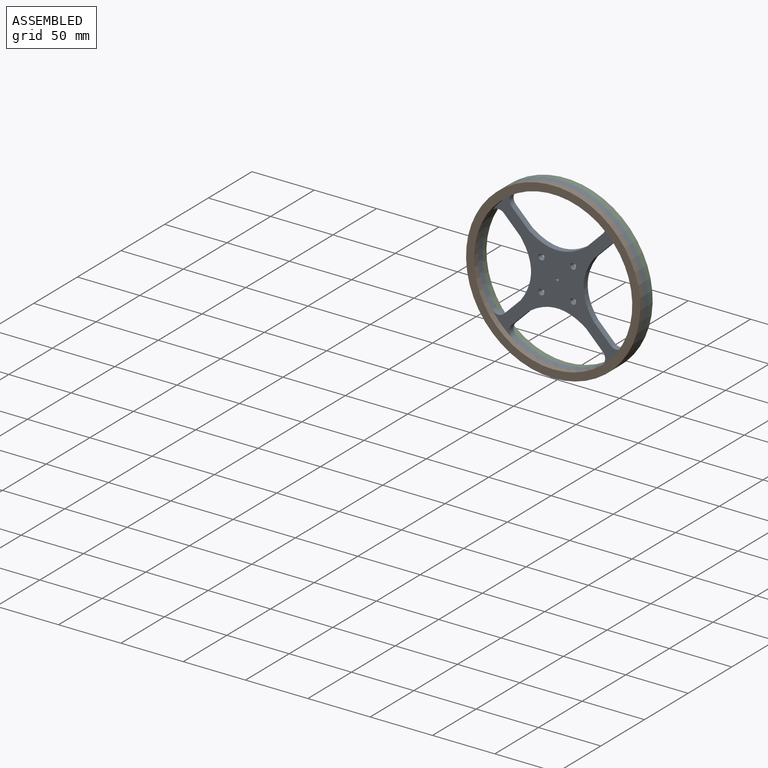
[diagram: assembled view]
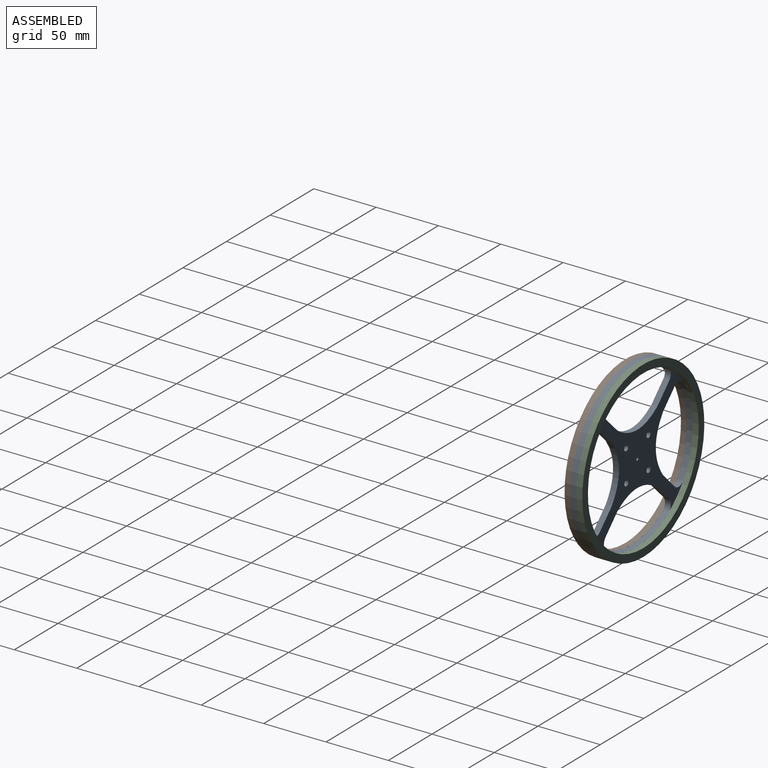
[diagram: assembled view, second angle]
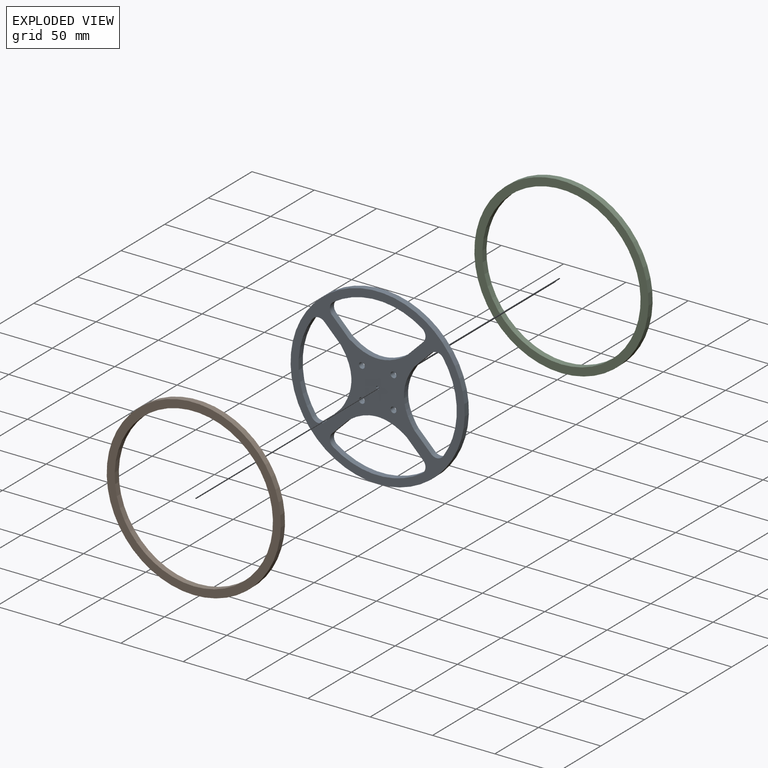
[diagram: exploded view]
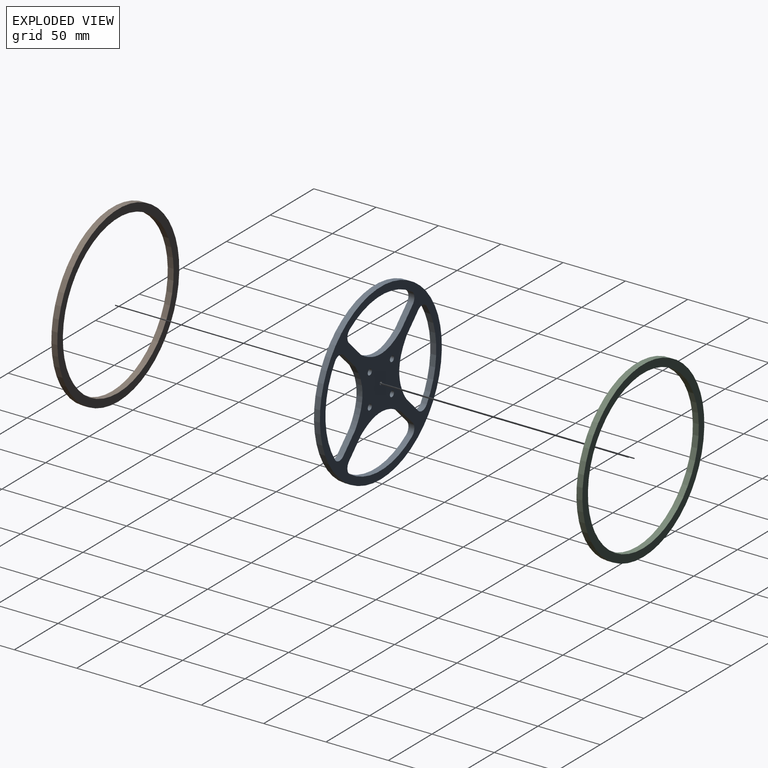
[diagram: exploded view, second angle]
ASSEMBLY  parts=3 mates=2
PART A: 32 faces, bbox 139.7x4.8x139.7 mm
  f0: plane 13.45x13.45mm, normal (-0.71,0,0.71), area 90.6mm2, adj f1,f25,f30,f31
  f1: extruded ~46.11x8.35mm, area 237.6mm2, adj f0,f2,f30,f31
  f2: plane 13.45x13.45mm, normal (0.71,0,0.71), area 90.6mm2, adj f1,f3,f30,f31
  f3: cylinder r=6.35mm len=9.75mm, axis (0,1,0), area 53.3mm2, adj f2,f4,f30,f31
  f4: cylinder r=63.5mm len=71.14mm, axis (0,1,0), area 359.6mm2, adj f3,f25,f30,f31
  f5: plane 13.45x13.45mm, normal (0.71,0,0.71), area 90.6mm2, adj f6,f26,f30,f31
  f6: extruded ~46.11x8.35mm, area 237.6mm2, adj f5,f7,f30,f31
  f7: plane 13.45x13.45mm, normal (0.71,0,-0.71), area 90.6mm2, adj f6,f8,f30,f31
  f8: cylinder r=6.35mm len=9.75mm, axis (0,1,0), area 53.3mm2, adj f7,f9,f30,f31
  f9: cylinder r=63.5mm len=71.14mm, axis (0,1,0), area 359.6mm2, adj f8,f26,f30,f31
  f10: plane 13.45x13.45mm, normal (0.71,0,-0.71), area 90.6mm2, adj f11,f27,f30,f31
  f11: extruded ~46.11x8.35mm, area 237.6mm2, adj f10,f12,f30,f31
  f12: plane 13.45x13.45mm, normal (-0.71,0,-0.71), area 90.6mm2, adj f11,f13,f30,f31
  f13: cylinder r=6.35mm len=9.75mm, axis (0,1,0), area 53.3mm2, adj f12,f14,f30,f31
  f14: cylinder r=63.5mm len=71.14mm, axis (0,1,0), area 359.6mm2, adj f13,f27,f30,f31
  f15: plane 13.45x13.45mm, normal (-0.71,0,0.71), area 90.6mm2, adj f16,f28,f30,f31
  f16: cylinder r=6.35mm len=9.75mm, axis (0,1,0), area 53.3mm2, adj f15,f17,f30,f31
  f17: cylinder r=63.5mm len=71.14mm, axis (0,1,0), area 359.6mm2, adj f16,f18,f30,f31
  f18: cylinder r=6.35mm len=9.75mm, axis (0,1,0), area 53.3mm2, adj f17,f19,f30,f31
  f19: plane 13.45x13.45mm, normal (-0.71,0,-0.71), area 90.6mm2, adj f18,f28,f30,f31
  f20: cylinder r=1.27mm len=4.76mm, axis (0,1,0), area 38mm2, adj f30,f31
  f21: cylinder r=2.32mm len=4.76mm, axis (0,1,0), area 69.5mm2, adj f30,f31
  f22: cylinder r=2.32mm len=4.76mm, axis (0,1,0), area 69.5mm2, adj f30,f31
  f23: cylinder r=2.32mm len=4.76mm, axis (0,1,0), area 69.5mm2, adj f30,f31
  f24: cylinder r=2.32mm len=4.76mm, axis (0,1,0), area 69.5mm2, adj f30,f31
  f25: cylinder r=6.35mm len=9.75mm, axis (0,1,0), area 53.3mm2, adj f0,f4,f30,f31
  f26: cylinder r=6.35mm len=9.75mm, axis (0,1,0), area 53.3mm2, adj f5,f9,f30,f31
  f27: cylinder r=6.35mm len=9.75mm, axis (0,1,0), area 53.3mm2, adj f10,f14,f30,f31
  f28: extruded ~46.11x8.35mm, area 237.6mm2, adj f15,f19,f30,f31
  f29: cylinder r=69.85mm len=139.7mm, axis (0,1,0), area 2090.2mm2, adj f30,f31
  f30: plane 139.7x139.7mm, normal (0,-1,0), area 5982.3mm2, adj f0,f1,f2,f3,f4,f5,f6,f7
  f31: plane 139.7x139.7mm, normal (0,1,0), area 5982.3mm2, adj f0,f1,f2,f3,f4,f5,f6,f7
PART B: 4 faces, bbox 139.7x4.8x139.7 mm
  f0: cylinder r=63.5mm len=127mm, axis (0,1,0), area 1900.2mm2, adj f2,f3
  f1: cylinder r=69.85mm len=139.7mm, axis (0,1,0), area 2090.2mm2, adj f2,f3
  f2: plane 139.7x139.7mm, normal (0,-1,0), area 2660.2mm2, adj f0,f1
  f3: plane 139.7x139.7mm, normal (0,1,0), area 2660.2mm2, adj f0,f1
PART C: same geometry as B
PLACE A t=(0,4.76,0)mm
PLACE B at identity
PLACE C t=(0,9.53,0)mm
MATE fastened A.f29 <-> B.f0  axis (0,-1,0) through (0,0,0)mm
MATE fastened A.f20 <-> C.f0  axis (0,1,0) through (0,4.76,0)mm
